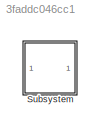
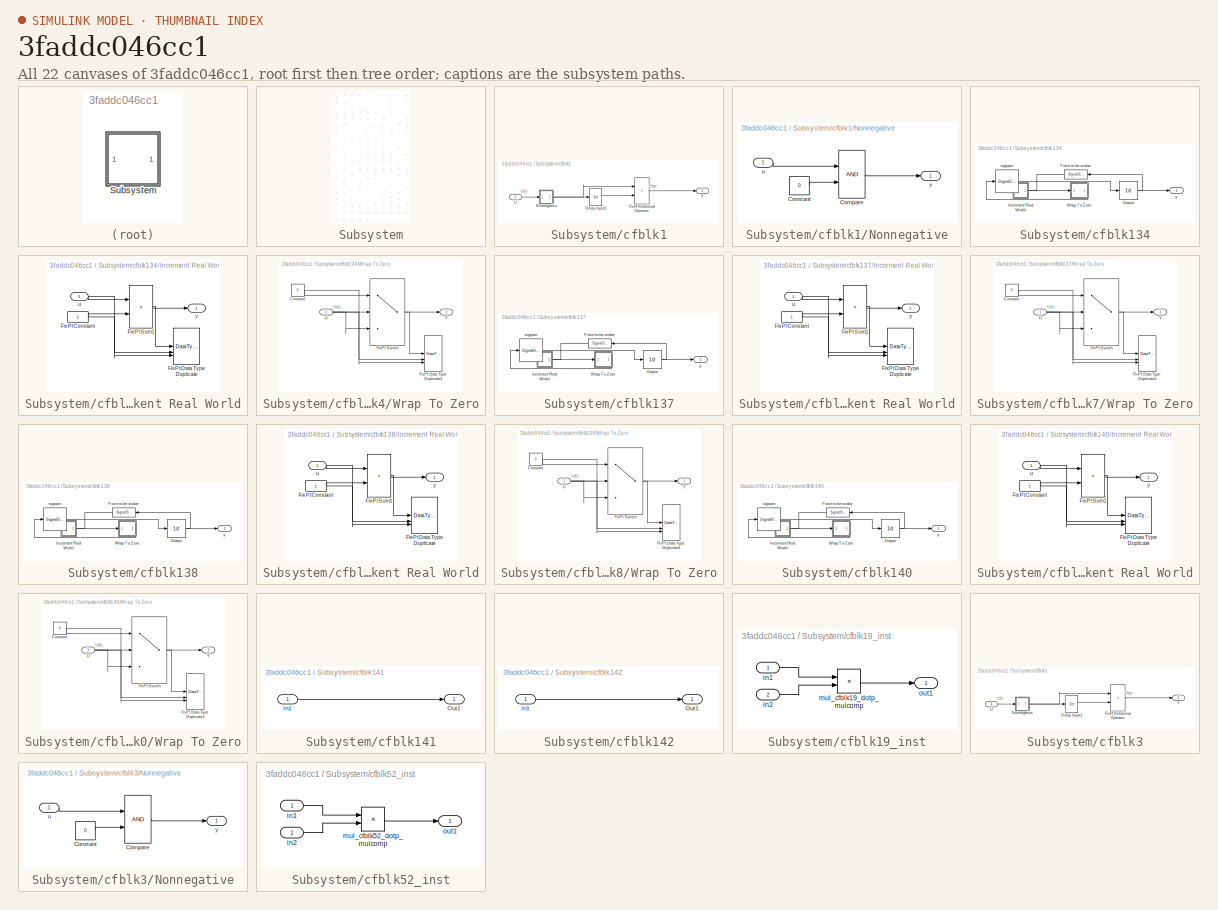
[diagram: thumbnail index - all 22 canvases of the model, root first then tree order]
MODEL slx_3faddc046cc1
KIND model
CONFIG AbsTol = auto
CONFIG EnableMultiTasking = off
CONFIG FixedStep = auto
CONFIG MaxStep = auto
CONFIG MinStep = auto
CONFIG RelTol = 1e-3
CONFIG SampleTimeConstraint = Unconstrained
CONFIG SolverName = VariableStepAuto
CONFIG StartTime = 0.0
CONFIG StopTime = 10.0
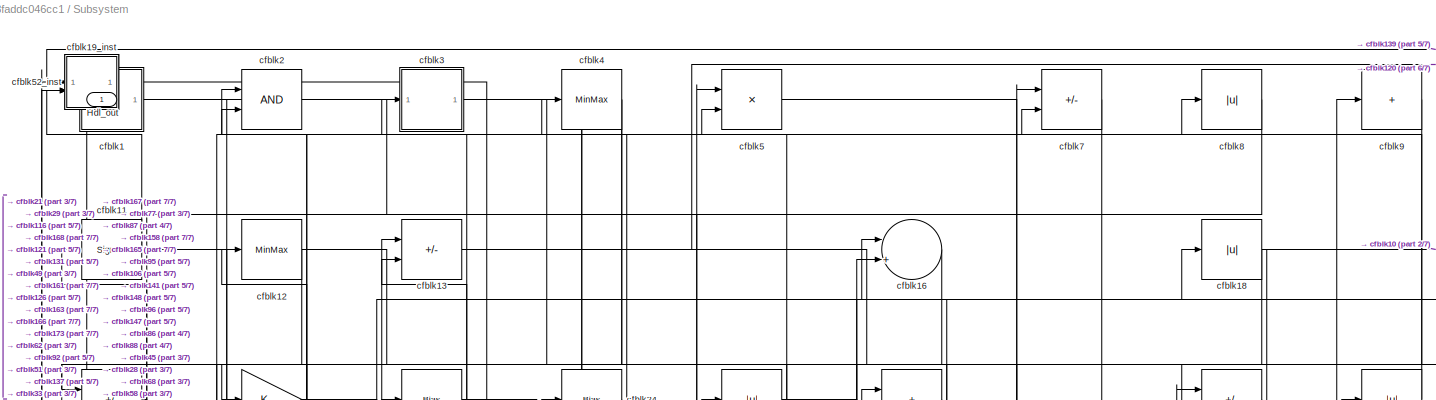
[diagram: Subsystem - part 1/7, full width, top band]
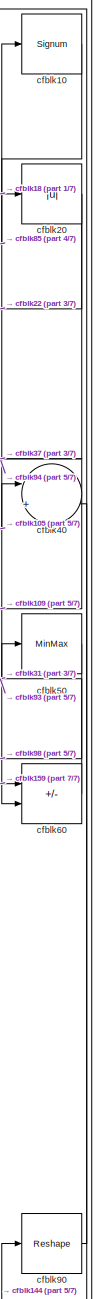
[diagram: Subsystem - part 2/7, top right region]
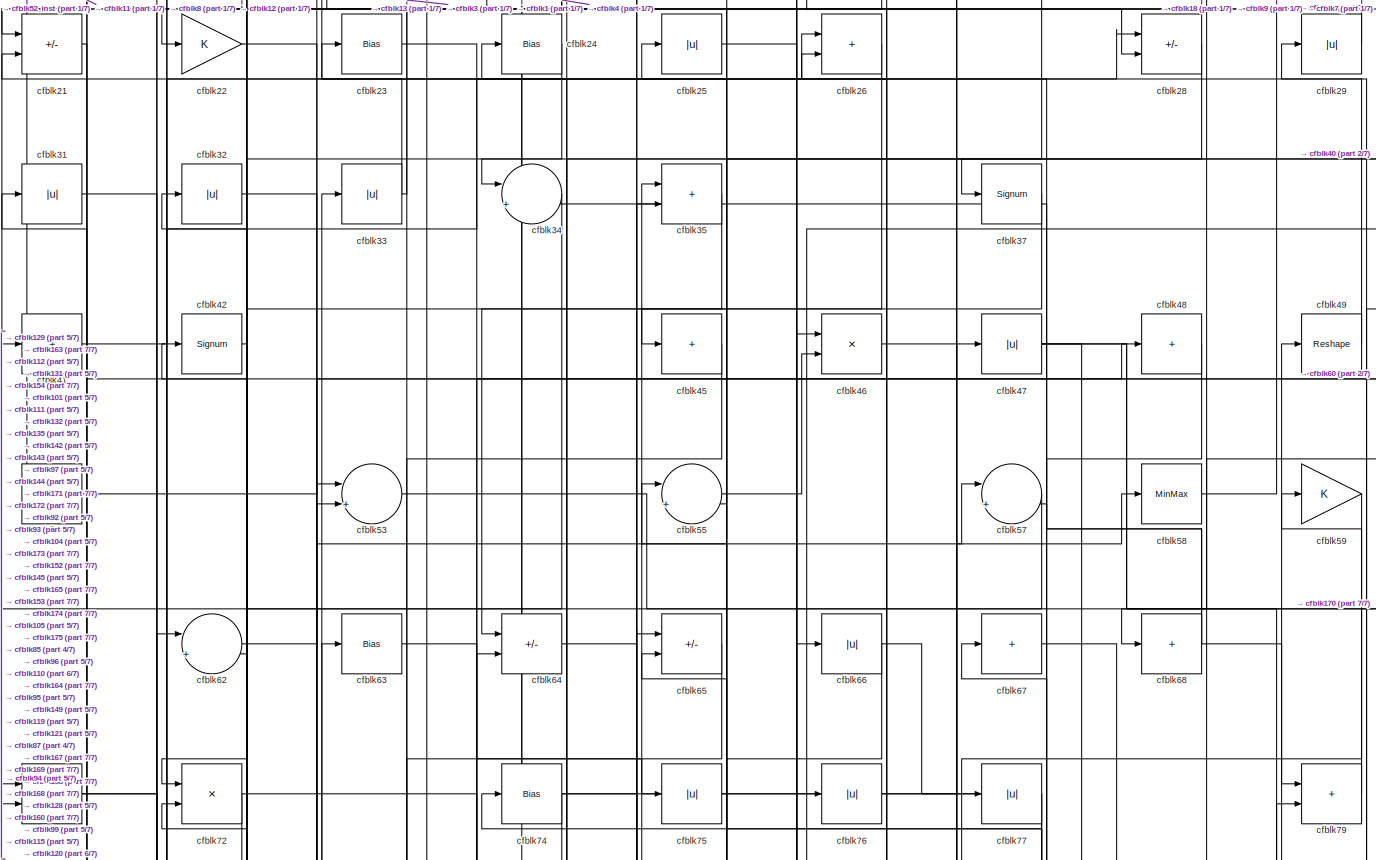
[diagram: Subsystem - part 3/7, full width, top band]
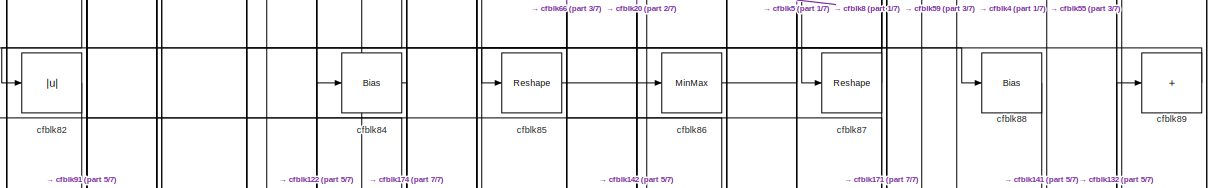
[diagram: Subsystem - part 4/7, full width, middle band]
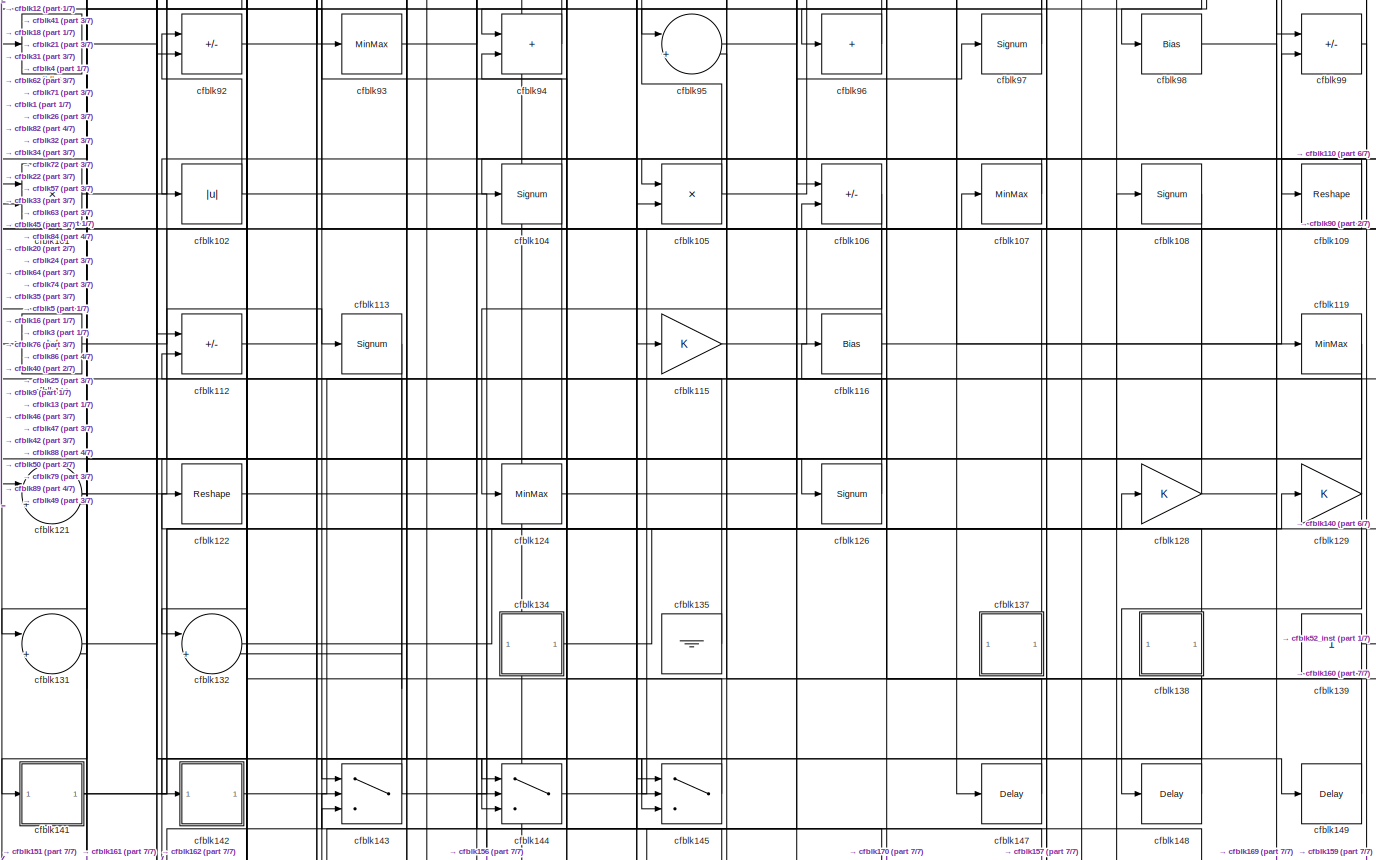
[diagram: Subsystem - part 5/7, full width, bottom band]
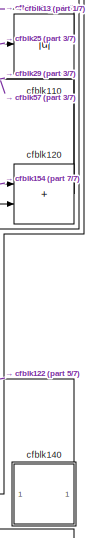
[diagram: Subsystem - part 6/7, bottom right region]
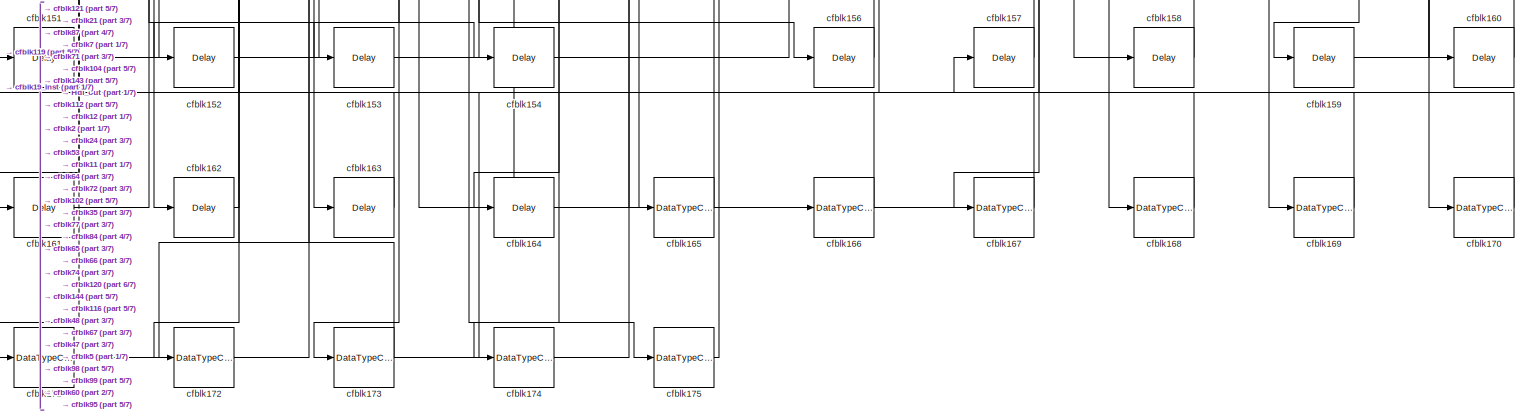
[diagram: Subsystem - part 7/7, full width, bottom band]
BLOCK [SubSystem] Subsystem
BLOCK [Outport] Subsystem/Hdl_out
  OutDataTypeStr = uint8
  SampleTime = 1
BLOCK [SubSystem] Subsystem/cfblk1
BLOCK [UnitDelay] Subsystem/cfblk1/Delay Input1
  Description = Store in Global RAM
  DisableCoverage = on
  HasFrameUpgradeWarning = on
  InitialCondition = vinit
  SampleTime = -1
BLOCK [RelationalOperator] Subsystem/cfblk1/FixPt Relational Operator
  InputSameDT = off
  Operator = >
  OutDataTypeStr = fixdt(0, 8)
  ZeroCross = off
BLOCK [SubSystem] Subsystem/cfblk1/Nonnegative
BLOCK [RelationalOperator] Subsystem/cfblk1/Nonnegative/Compare
  OutDataTypeStr = boolean
  ZeroCross = off
BLOCK [Constant] Subsystem/cfblk1/Nonnegative/Constant
  DisableCoverage = on
  OutDataTypeStr = Inherit: Inherit via back propagation
  PreserveConstantTs = on
  SampleTime = -1
  Value = 0
BLOCK [Inport] Subsystem/cfblk1/Nonnegative/u
  OutDataTypeStr = uint8
  SampleTime = 1
BLOCK [Outport] Subsystem/cfblk1/Nonnegative/y
  SampleTime = 1
BLOCK [Inport] Subsystem/cfblk1/U
  OutDataTypeStr = uint8
  SampleTime = 1
BLOCK [Outport] Subsystem/cfblk1/Y
  SampleTime = 1
BLOCK [Signum] Subsystem/cfblk10
BLOCK [Product] Subsystem/cfblk101
  Inputs = */
  OutDataTypeStr = uint8
  RndMeth = Zero
  SaturateOnIntegerOverflow = on
BLOCK [Abs] Subsystem/cfblk102
  OutDataTypeStr = uint8
  SaturateOnIntegerOverflow = off
BLOCK [Signum] Subsystem/cfblk104
BLOCK [Product] Subsystem/cfblk105
  Inputs = */
  OutDataTypeStr = uint8
  RndMeth = Zero
  SaturateOnIntegerOverflow = on
BLOCK [Sum] Subsystem/cfblk106
  IconShape = rectangular
  Inputs = +-
  OutDataTypeStr = uint8
BLOCK [MinMax] Subsystem/cfblk107
  OutDataTypeStr = uint8
BLOCK [Signum] Subsystem/cfblk108
BLOCK [Reshape] Subsystem/cfblk109
BLOCK [Signum] Subsystem/cfblk11
BLOCK [Abs] Subsystem/cfblk110
  OutDataTypeStr = uint8
  SaturateOnIntegerOverflow = off
BLOCK [Abs] Subsystem/cfblk111
  OutDataTypeStr = uint8
  SaturateOnIntegerOverflow = off
BLOCK [Sum] Subsystem/cfblk112
  IconShape = rectangular
  Inputs = +-
  OutDataTypeStr = uint8
BLOCK [Signum] Subsystem/cfblk113
BLOCK [Gain] Subsystem/cfblk115
  OutDataTypeStr = uint8
BLOCK [Bias] Subsystem/cfblk116
  Bias = 0.0
  SaturateOnIntegerOverflow = off
BLOCK [MinMax] Subsystem/cfblk119
  OutDataTypeStr = uint8
BLOCK [MinMax] Subsystem/cfblk12
  OutDataTypeStr = uint8
BLOCK [Sum] Subsystem/cfblk120
  IconShape = rectangular
  OutDataTypeStr = uint8
BLOCK [Sum] Subsystem/cfblk121
  Inputs = |++
  OutDataTypeStr = uint8
BLOCK [Reshape] Subsystem/cfblk122
BLOCK [MinMax] Subsystem/cfblk124
  OutDataTypeStr = uint8
BLOCK [Signum] Subsystem/cfblk126
BLOCK [Gain] Subsystem/cfblk128
  OutDataTypeStr = uint8
BLOCK [Gain] Subsystem/cfblk129
  OutDataTypeStr = uint8
BLOCK [Sum] Subsystem/cfblk13
  IconShape = rectangular
  Inputs = +-
  OutDataTypeStr = uint8
BLOCK [Sum] Subsystem/cfblk131
  Inputs = |++
  OutDataTypeStr = uint8
BLOCK [Sum] Subsystem/cfblk132
  Inputs = |++
  OutDataTypeStr = uint8
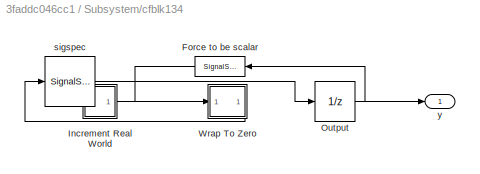
BLOCK [SubSystem] Subsystem/cfblk134
BLOCK [SignalSpecification] Subsystem/cfblk134/Force to be scalar
  Dimensions = 1
  DisableCoverage = on
BLOCK [SubSystem] Subsystem/cfblk134/Increment Real World
BLOCK [Constant] Subsystem/cfblk134/Increment Real World/FixPt Constant
  DisableCoverage = on
  OutDataTypeStr = Inherit: Inherit via back propagation
  SampleTime = -1
BLOCK [DataTypeDuplicate] Subsystem/cfblk134/Increment Real World/FixPt Data Type Duplicate
  DisableCoverage = on
  NumInputPorts = 3
BLOCK [Sum] Subsystem/cfblk134/Increment Real World/FixPt Sum1
  IconShape = rectangular
  InputSameDT = on
  LockScale = on
  OutDataTypeStr = Inherit: Inherit via back propagation
BLOCK [Inport] Subsystem/cfblk134/Increment Real World/u
  OutDataTypeStr = uint8
  SampleTime = 1
BLOCK [Outport] Subsystem/cfblk134/Increment Real World/y
  SampleTime = 1
BLOCK [UnitDelay] Subsystem/cfblk134/Output
  HasFrameUpgradeWarning = on
  InitialCondition = 0.0
  SampleTime = tsamp
BLOCK [SubSystem] Subsystem/cfblk134/Wrap To Zero
BLOCK [Constant] Subsystem/cfblk134/Wrap To Zero/Constant
  DisableCoverage = on
  OutDataTypeStr = Inherit: Inherit via back propagation
  SampleTime = -1
  Value = 0
BLOCK [DataTypeDuplicate] Subsystem/cfblk134/Wrap To Zero/FixPt Data Type Duplicate1
  DisableCoverage = on
  NumInputPorts = 3
BLOCK [Switch] Subsystem/cfblk134/Wrap To Zero/FixPt Switch
  Criteria = u2 > Threshold
  InputSameDT = off
  OutDataTypeStr = Inherit: Inherit via back propagation
  SaturateOnIntegerOverflow = off
  Threshold = Threshold
  ZeroCross = off
BLOCK [Inport] Subsystem/cfblk134/Wrap To Zero/U
  OutDataTypeStr = uint8
  SampleTime = 1
BLOCK [Outport] Subsystem/cfblk134/Wrap To Zero/Y
  SampleTime = 1
BLOCK [SignalSpecification] Subsystem/cfblk134/sigspec
  Dimensions = 1
  OutDataTypeStr = uint8
BLOCK [Outport] Subsystem/cfblk134/y
  SampleTime = 1
BLOCK [Ground] Subsystem/cfblk135
BLOCK [SubSystem] Subsystem/cfblk137
BLOCK [SignalSpecification] Subsystem/cfblk137/Force to be scalar
  Dimensions = 1
  DisableCoverage = on
BLOCK [SubSystem] Subsystem/cfblk137/Increment Real World
BLOCK [Constant] Subsystem/cfblk137/Increment Real World/FixPt Constant
  DisableCoverage = on
  OutDataTypeStr = Inherit: Inherit via back propagation
  SampleTime = -1
BLOCK [DataTypeDuplicate] Subsystem/cfblk137/Increment Real World/FixPt Data Type Duplicate
  DisableCoverage = on
  NumInputPorts = 3
BLOCK [Sum] Subsystem/cfblk137/Increment Real World/FixPt Sum1
  IconShape = rectangular
  InputSameDT = on
  LockScale = on
  OutDataTypeStr = Inherit: Inherit via back propagation
BLOCK [Inport] Subsystem/cfblk137/Increment Real World/u
  OutDataTypeStr = uint8
  SampleTime = 1
BLOCK [Outport] Subsystem/cfblk137/Increment Real World/y
  SampleTime = 1
BLOCK [UnitDelay] Subsystem/cfblk137/Output
  HasFrameUpgradeWarning = on
  InitialCondition = 0.0
  SampleTime = tsamp
BLOCK [SubSystem] Subsystem/cfblk137/Wrap To Zero
BLOCK [Constant] Subsystem/cfblk137/Wrap To Zero/Constant
  DisableCoverage = on
  OutDataTypeStr = Inherit: Inherit via back propagation
  SampleTime = -1
  Value = 0
BLOCK [DataTypeDuplicate] Subsystem/cfblk137/Wrap To Zero/FixPt Data Type Duplicate1
  DisableCoverage = on
  NumInputPorts = 3
BLOCK [Switch] Subsystem/cfblk137/Wrap To Zero/FixPt Switch
  Criteria = u2 > Threshold
  InputSameDT = off
  OutDataTypeStr = Inherit: Inherit via back propagation
  SaturateOnIntegerOverflow = off
  Threshold = Threshold
  ZeroCross = off
BLOCK [Inport] Subsystem/cfblk137/Wrap To Zero/U
  OutDataTypeStr = uint8
  SampleTime = 1
BLOCK [Outport] Subsystem/cfblk137/Wrap To Zero/Y
  SampleTime = 1
BLOCK [SignalSpecification] Subsystem/cfblk137/sigspec
  Dimensions = 1
  OutDataTypeStr = uint8
BLOCK [Outport] Subsystem/cfblk137/y
  SampleTime = 1
BLOCK [SubSystem] Subsystem/cfblk138
BLOCK [SignalSpecification] Subsystem/cfblk138/Force to be scalar
  Dimensions = 1
  DisableCoverage = on
BLOCK [SubSystem] Subsystem/cfblk138/Increment Real World
BLOCK [Constant] Subsystem/cfblk138/Increment Real World/FixPt Constant
  DisableCoverage = on
  OutDataTypeStr = Inherit: Inherit via back propagation
  SampleTime = -1
BLOCK [DataTypeDuplicate] Subsystem/cfblk138/Increment Real World/FixPt Data Type Duplicate
  DisableCoverage = on
  NumInputPorts = 3
BLOCK [Sum] Subsystem/cfblk138/Increment Real World/FixPt Sum1
  IconShape = rectangular
  InputSameDT = on
  LockScale = on
  OutDataTypeStr = Inherit: Inherit via back propagation
BLOCK [Inport] Subsystem/cfblk138/Increment Real World/u
  OutDataTypeStr = uint8
  SampleTime = 1
BLOCK [Outport] Subsystem/cfblk138/Increment Real World/y
  SampleTime = 1
BLOCK [UnitDelay] Subsystem/cfblk138/Output
  HasFrameUpgradeWarning = on
  InitialCondition = 0.0
  SampleTime = tsamp
BLOCK [SubSystem] Subsystem/cfblk138/Wrap To Zero
BLOCK [Constant] Subsystem/cfblk138/Wrap To Zero/Constant
  DisableCoverage = on
  OutDataTypeStr = Inherit: Inherit via back propagation
  SampleTime = -1
  Value = 0
BLOCK [DataTypeDuplicate] Subsystem/cfblk138/Wrap To Zero/FixPt Data Type Duplicate1
  DisableCoverage = on
  NumInputPorts = 3
BLOCK [Switch] Subsystem/cfblk138/Wrap To Zero/FixPt Switch
  Criteria = u2 > Threshold
  InputSameDT = off
  OutDataTypeStr = Inherit: Inherit via back propagation
  SaturateOnIntegerOverflow = off
  Threshold = Threshold
  ZeroCross = off
BLOCK [Inport] Subsystem/cfblk138/Wrap To Zero/U
  OutDataTypeStr = uint8
  SampleTime = 1
BLOCK [Outport] Subsystem/cfblk138/Wrap To Zero/Y
  SampleTime = 1
BLOCK [SignalSpecification] Subsystem/cfblk138/sigspec
  Dimensions = 1
  OutDataTypeStr = uint8
BLOCK [Outport] Subsystem/cfblk138/y
  SampleTime = 1
BLOCK [Constant] Subsystem/cfblk139
  OutDataTypeStr = uint8
  SampleTime = -1
BLOCK [SubSystem] Subsystem/cfblk140
BLOCK [SignalSpecification] Subsystem/cfblk140/Force to be scalar
  Dimensions = 1
  DisableCoverage = on
BLOCK [SubSystem] Subsystem/cfblk140/Increment Real World
BLOCK [Constant] Subsystem/cfblk140/Increment Real World/FixPt Constant
  DisableCoverage = on
  OutDataTypeStr = Inherit: Inherit via back propagation
  SampleTime = -1
BLOCK [DataTypeDuplicate] Subsystem/cfblk140/Increment Real World/FixPt Data Type Duplicate
  DisableCoverage = on
  NumInputPorts = 3
BLOCK [Sum] Subsystem/cfblk140/Increment Real World/FixPt Sum1
  IconShape = rectangular
  InputSameDT = on
  LockScale = on
  OutDataTypeStr = Inherit: Inherit via back propagation
BLOCK [Inport] Subsystem/cfblk140/Increment Real World/u
  OutDataTypeStr = uint8
  SampleTime = 1
BLOCK [Outport] Subsystem/cfblk140/Increment Real World/y
  SampleTime = 1
BLOCK [UnitDelay] Subsystem/cfblk140/Output
  HasFrameUpgradeWarning = on
  InitialCondition = 0.0
  SampleTime = tsamp
BLOCK [SubSystem] Subsystem/cfblk140/Wrap To Zero
BLOCK [Constant] Subsystem/cfblk140/Wrap To Zero/Constant
  DisableCoverage = on
  OutDataTypeStr = Inherit: Inherit via back propagation
  SampleTime = -1
  Value = 0
BLOCK [DataTypeDuplicate] Subsystem/cfblk140/Wrap To Zero/FixPt Data Type Duplicate1
  DisableCoverage = on
  NumInputPorts = 3
BLOCK [Switch] Subsystem/cfblk140/Wrap To Zero/FixPt Switch
  Criteria = u2 > Threshold
  InputSameDT = off
  OutDataTypeStr = Inherit: Inherit via back propagation
  SaturateOnIntegerOverflow = off
  Threshold = Threshold
  ZeroCross = off
BLOCK [Inport] Subsystem/cfblk140/Wrap To Zero/U
  OutDataTypeStr = uint8
  SampleTime = 1
BLOCK [Outport] Subsystem/cfblk140/Wrap To Zero/Y
  SampleTime = 1
BLOCK [SignalSpecification] Subsystem/cfblk140/sigspec
  Dimensions = 1
  OutDataTypeStr = uint8
BLOCK [Outport] Subsystem/cfblk140/y
  SampleTime = 1
BLOCK [SubSystem] Subsystem/cfblk141
BLOCK [Inport] Subsystem/cfblk141/In1
  OutDataTypeStr = uint8
  PortDimensions = 1
  SampleTime = 1
BLOCK [Outport] Subsystem/cfblk141/Out1
  SampleTime = 1
BLOCK [SubSystem] Subsystem/cfblk142
BLOCK [Inport] Subsystem/cfblk142/In1
  OutDataTypeStr = uint8
  PortDimensions = 1
  SampleTime = 1
BLOCK [Outport] Subsystem/cfblk142/Out1
  SampleTime = 1
BLOCK [Switch] Subsystem/cfblk143
  InputSameDT = off
  OutDataTypeStr = uint8
  SaturateOnIntegerOverflow = off
BLOCK [Switch] Subsystem/cfblk144
  InputSameDT = off
  OutDataTypeStr = uint8
  SaturateOnIntegerOverflow = off
BLOCK [Switch] Subsystem/cfblk145
  InputSameDT = off
  OutDataTypeStr = uint8
  SaturateOnIntegerOverflow = off
BLOCK [Delay] Subsystem/cfblk147
  InputPortMap = u0
  SampleTime = 1
BLOCK [Delay] Subsystem/cfblk148
  InputPortMap = u0
  SampleTime = 1
BLOCK [Delay] Subsystem/cfblk149
  InputPortMap = u0
  SampleTime = 1
BLOCK [Delay] Subsystem/cfblk151
  InputPortMap = u0
  SampleTime = 1
BLOCK [Delay] Subsystem/cfblk152
  InputPortMap = u0
  SampleTime = 1
BLOCK [Delay] Subsystem/cfblk153
  InputPortMap = u0
  SampleTime = 1
BLOCK [Delay] Subsystem/cfblk154
  InputPortMap = u0
  SampleTime = 1
BLOCK [Delay] Subsystem/cfblk156
  InputPortMap = u0
  SampleTime = 1
BLOCK [Delay] Subsystem/cfblk157
  InputPortMap = u0
  SampleTime = 1
BLOCK [Delay] Subsystem/cfblk158
  InputPortMap = u0
  SampleTime = 1
BLOCK [Delay] Subsystem/cfblk159
  InputPortMap = u0
  SampleTime = 1
BLOCK [Sum] Subsystem/cfblk16
  Inputs = |++
  OutDataTypeStr = uint8
BLOCK [Delay] Subsystem/cfblk160
  InputPortMap = u0
  SampleTime = 1
BLOCK [Delay] Subsystem/cfblk161
  InputPortMap = u0
  SampleTime = 1
BLOCK [Delay] Subsystem/cfblk162
  InputPortMap = u0
  SampleTime = 1
BLOCK [Delay] Subsystem/cfblk163
  InputPortMap = u0
  SampleTime = 1
BLOCK [Delay] Subsystem/cfblk164
  InputPortMap = u0
  SampleTime = 1
BLOCK [DataTypeConversion] Subsystem/cfblk165
  OutDataTypeStr = uint8
  RndMeth = Floor
  SaturateOnIntegerOverflow = off
BLOCK [DataTypeConversion] Subsystem/cfblk166
  OutDataTypeStr = uint8
  RndMeth = Floor
  SaturateOnIntegerOverflow = off
BLOCK [DataTypeConversion] Subsystem/cfblk167
  OutDataTypeStr = uint8
  RndMeth = Floor
  SaturateOnIntegerOverflow = off
BLOCK [DataTypeConversion] Subsystem/cfblk168
  OutDataTypeStr = uint8
  RndMeth = Floor
  SaturateOnIntegerOverflow = off
BLOCK [DataTypeConversion] Subsystem/cfblk169
  OutDataTypeStr = uint8
  RndMeth = Floor
  SaturateOnIntegerOverflow = off
BLOCK [DataTypeConversion] Subsystem/cfblk170
  OutDataTypeStr = uint8
  RndMeth = Floor
  SaturateOnIntegerOverflow = off
BLOCK [DataTypeConversion] Subsystem/cfblk171
  OutDataTypeStr = uint8
  RndMeth = Floor
  SaturateOnIntegerOverflow = off
BLOCK [DataTypeConversion] Subsystem/cfblk172
  OutDataTypeStr = uint8
  RndMeth = Floor
  SaturateOnIntegerOverflow = off
BLOCK [DataTypeConversion] Subsystem/cfblk173
  OutDataTypeStr = uint8
  RndMeth = Floor
  SaturateOnIntegerOverflow = off
BLOCK [DataTypeConversion] Subsystem/cfblk174
  OutDataTypeStr = uint8
  RndMeth = Floor
  SaturateOnIntegerOverflow = off
BLOCK [DataTypeConversion] Subsystem/cfblk175
  OutDataTypeStr = uint8
  RndMeth = Floor
  SaturateOnIntegerOverflow = off
BLOCK [Abs] Subsystem/cfblk18
  OutDataTypeStr = uint8
  SaturateOnIntegerOverflow = off
BLOCK [SubSystem] Subsystem/cfblk19_inst
BLOCK [Inport] Subsystem/cfblk19_inst/in1
  OutDataTypeStr = uint8
  SampleTime = 1
BLOCK [Inport] Subsystem/cfblk19_inst/in2
  OutDataTypeStr = uint8
  Port = 2
  SampleTime = 1
BLOCK [Product] Subsystem/cfblk19_inst/mul_cfblk19_dotp_mulcomp
  Inputs = **
  OutDataTypeStr = uint8
  SampleTime = 1
BLOCK [Outport] Subsystem/cfblk19_inst/out1
  OutDataTypeStr = uint8
  SampleTime = 1
BLOCK [Logic] Subsystem/cfblk2
  AllPortsSameDT = off
  OutDataTypeStr = boolean
BLOCK [Abs] Subsystem/cfblk20
  OutDataTypeStr = uint8
  SaturateOnIntegerOverflow = off
BLOCK [Sum] Subsystem/cfblk21
  IconShape = rectangular
  Inputs = +-
  OutDataTypeStr = uint8
BLOCK [Gain] Subsystem/cfblk22
  OutDataTypeStr = uint8
BLOCK [Bias] Subsystem/cfblk23
  Bias = 0.0
  SaturateOnIntegerOverflow = off
BLOCK [Bias] Subsystem/cfblk24
  Bias = 0.0
  SaturateOnIntegerOverflow = off
BLOCK [Abs] Subsystem/cfblk25
  OutDataTypeStr = uint8
  SaturateOnIntegerOverflow = off
BLOCK [Sum] Subsystem/cfblk26
  IconShape = rectangular
  OutDataTypeStr = uint8
BLOCK [Sum] Subsystem/cfblk28
  IconShape = rectangular
  Inputs = +-
  OutDataTypeStr = uint8
BLOCK [Abs] Subsystem/cfblk29
  OutDataTypeStr = uint8
  SaturateOnIntegerOverflow = off
BLOCK [SubSystem] Subsystem/cfblk3
BLOCK [UnitDelay] Subsystem/cfblk3/Delay Input1
  Description = Store in Global RAM
  DisableCoverage = on
  HasFrameUpgradeWarning = on
  InitialCondition = vinit
  SampleTime = -1
BLOCK [RelationalOperator] Subsystem/cfblk3/FixPt Relational Operator
  InputSameDT = off
  Operator = >
  OutDataTypeStr = fixdt(0, 8)
  ZeroCross = off
BLOCK [SubSystem] Subsystem/cfblk3/Nonnegative
BLOCK [RelationalOperator] Subsystem/cfblk3/Nonnegative/Compare
  OutDataTypeStr = boolean
  ZeroCross = off
BLOCK [Constant] Subsystem/cfblk3/Nonnegative/Constant
  DisableCoverage = on
  OutDataTypeStr = Inherit: Inherit via back propagation
  PreserveConstantTs = on
  SampleTime = -1
  Value = 0
BLOCK [Inport] Subsystem/cfblk3/Nonnegative/u
  OutDataTypeStr = uint8
  SampleTime = 1
BLOCK [Outport] Subsystem/cfblk3/Nonnegative/y
  SampleTime = 1
BLOCK [Inport] Subsystem/cfblk3/U
  OutDataTypeStr = uint8
  SampleTime = 1
BLOCK [Outport] Subsystem/cfblk3/Y
  SampleTime = 1
BLOCK [Abs] Subsystem/cfblk31
  OutDataTypeStr = uint8
  SaturateOnIntegerOverflow = off
BLOCK [Abs] Subsystem/cfblk32
  OutDataTypeStr = uint8
  SaturateOnIntegerOverflow = off
BLOCK [Abs] Subsystem/cfblk33
  OutDataTypeStr = uint8
  SaturateOnIntegerOverflow = off
BLOCK [Sum] Subsystem/cfblk34
  Inputs = |++
  OutDataTypeStr = uint8
BLOCK [Sum] Subsystem/cfblk35
  IconShape = rectangular
  OutDataTypeStr = uint8
BLOCK [Signum] Subsystem/cfblk37
BLOCK [MinMax] Subsystem/cfblk4
  OutDataTypeStr = uint8
BLOCK [Sum] Subsystem/cfblk40
  Inputs = |++
  OutDataTypeStr = uint8
BLOCK [Sum] Subsystem/cfblk41
  IconShape = rectangular
  Inputs = +
  OutDataTypeStr = uint8
BLOCK [Signum] Subsystem/cfblk42
BLOCK [Sum] Subsystem/cfblk45
  IconShape = rectangular
  Inputs = +
  OutDataTypeStr = uint8
BLOCK [Product] Subsystem/cfblk46
  Inputs = */
  OutDataTypeStr = uint8
  RndMeth = Zero
  SaturateOnIntegerOverflow = on
BLOCK [Abs] Subsystem/cfblk47
  OutDataTypeStr = uint8
  SaturateOnIntegerOverflow = off
BLOCK [Sum] Subsystem/cfblk48
  IconShape = rectangular
  Inputs = +
  OutDataTypeStr = uint8
BLOCK [Reshape] Subsystem/cfblk49
BLOCK [Product] Subsystem/cfblk5
  Inputs = */
  OutDataTypeStr = uint8
  RndMeth = Zero
  SaturateOnIntegerOverflow = on
BLOCK [MinMax] Subsystem/cfblk50
  OutDataTypeStr = uint8
BLOCK [Bias] Subsystem/cfblk51
  Bias = 0.0
  SaturateOnIntegerOverflow = off
BLOCK [SubSystem] Subsystem/cfblk52_inst
BLOCK [Inport] Subsystem/cfblk52_inst/in1
  OutDataTypeStr = uint8
  SampleTime = 1
BLOCK [Inport] Subsystem/cfblk52_inst/in2
  OutDataTypeStr = uint8
  Port = 2
  SampleTime = 1
BLOCK [Product] Subsystem/cfblk52_inst/mul_cfblk52_dotp_mulcomp
  Inputs = **
  OutDataTypeStr = uint8
  SampleTime = 1
BLOCK [Outport] Subsystem/cfblk52_inst/out1
  OutDataTypeStr = uint8
  SampleTime = 1
BLOCK [Sum] Subsystem/cfblk53
  Inputs = |++
  OutDataTypeStr = uint8
BLOCK [Sum] Subsystem/cfblk55
  Inputs = |++
  OutDataTypeStr = uint8
BLOCK [Sum] Subsystem/cfblk57
  Inputs = |++
  OutDataTypeStr = uint8
BLOCK [MinMax] Subsystem/cfblk58
  OutDataTypeStr = uint8
BLOCK [Gain] Subsystem/cfblk59
  OutDataTypeStr = uint8
BLOCK [Sum] Subsystem/cfblk60
  IconShape = rectangular
  Inputs = +-
  OutDataTypeStr = uint8
BLOCK [Sum] Subsystem/cfblk62
  Inputs = |++
  OutDataTypeStr = uint8
BLOCK [Bias] Subsystem/cfblk63
  Bias = 0.0
  SaturateOnIntegerOverflow = off
BLOCK [Sum] Subsystem/cfblk64
  IconShape = rectangular
  Inputs = +-
  OutDataTypeStr = uint8
BLOCK [Sum] Subsystem/cfblk65
  IconShape = rectangular
  Inputs = +-
  OutDataTypeStr = uint8
BLOCK [Abs] Subsystem/cfblk66
  OutDataTypeStr = uint8
  SaturateOnIntegerOverflow = off
BLOCK [Sum] Subsystem/cfblk67
  IconShape = rectangular
  Inputs = +
  OutDataTypeStr = uint8
BLOCK [Sum] Subsystem/cfblk68
  IconShape = rectangular
  Inputs = +
  OutDataTypeStr = uint8
BLOCK [Sum] Subsystem/cfblk7
  IconShape = rectangular
  Inputs = +-
  OutDataTypeStr = uint8
BLOCK [Product] Subsystem/cfblk71
  Inputs = */
  OutDataTypeStr = uint8
  RndMeth = Zero
  SaturateOnIntegerOverflow = on
BLOCK [Product] Subsystem/cfblk72
  Inputs = */
  OutDataTypeStr = uint8
  RndMeth = Zero
  SaturateOnIntegerOverflow = on
BLOCK [Bias] Subsystem/cfblk74
  Bias = 0.0
  SaturateOnIntegerOverflow = off
BLOCK [Abs] Subsystem/cfblk75
  OutDataTypeStr = uint8
  SaturateOnIntegerOverflow = off
BLOCK [Abs] Subsystem/cfblk76
  OutDataTypeStr = uint8
  SaturateOnIntegerOverflow = off
BLOCK [Abs] Subsystem/cfblk77
  OutDataTypeStr = uint8
  SaturateOnIntegerOverflow = off
BLOCK [Sum] Subsystem/cfblk79
  IconShape = rectangular
  OutDataTypeStr = uint8
BLOCK [Abs] Subsystem/cfblk8
  OutDataTypeStr = uint8
  SaturateOnIntegerOverflow = off
BLOCK [Abs] Subsystem/cfblk82
  OutDataTypeStr = uint8
  SaturateOnIntegerOverflow = off
BLOCK [Bias] Subsystem/cfblk84
  Bias = 0.0
  SaturateOnIntegerOverflow = off
BLOCK [Reshape] Subsystem/cfblk85
BLOCK [MinMax] Subsystem/cfblk86
  OutDataTypeStr = uint8
BLOCK [Reshape] Subsystem/cfblk87
BLOCK [Bias] Subsystem/cfblk88
  Bias = 0.0
  SaturateOnIntegerOverflow = off
BLOCK [Sum] Subsystem/cfblk89
  IconShape = rectangular
  Inputs = +
  OutDataTypeStr = uint8
BLOCK [Sum] Subsystem/cfblk9
  IconShape = rectangular
  Inputs = +
  OutDataTypeStr = uint8
BLOCK [Reshape] Subsystem/cfblk90
BLOCK [Sum] Subsystem/cfblk91
  IconShape = rectangular
  Inputs = +
  OutDataTypeStr = uint8
BLOCK [Sum] Subsystem/cfblk92
  IconShape = rectangular
  Inputs = +-
  OutDataTypeStr = uint8
BLOCK [MinMax] Subsystem/cfblk93
  OutDataTypeStr = uint8
BLOCK [Sum] Subsystem/cfblk94
  IconShape = rectangular
  OutDataTypeStr = uint8
BLOCK [Sum] Subsystem/cfblk95
  Inputs = |++
  OutDataTypeStr = uint8
BLOCK [Sum] Subsystem/cfblk96
  IconShape = rectangular
  Inputs = +
  OutDataTypeStr = uint8
BLOCK [Signum] Subsystem/cfblk97
BLOCK [Bias] Subsystem/cfblk98
  Bias = 0.0
  SaturateOnIntegerOverflow = off
BLOCK [Sum] Subsystem/cfblk99
  IconShape = rectangular
  Inputs = +-
  OutDataTypeStr = uint8
ANNOTATION Subsystem/cfblk1: Edge
ANNOTATION Subsystem/cfblk1: U(k)
ANNOTATION Subsystem/cfblk134/Wrap To Zero: U(k)
ANNOTATION Subsystem/cfblk137/Wrap To Zero: U(k)
ANNOTATION Subsystem/cfblk138/Wrap To Zero: U(k)
ANNOTATION Subsystem/cfblk140/Wrap To Zero: U(k)
ANNOTATION Subsystem/cfblk3: Edge
ANNOTATION Subsystem/cfblk3: U(k)
LINE Subsystem/cfblk101:1 -> Subsystem/cfblk26:1
NET Subsystem/cfblk102:1 -> Subsystem/cfblk156:1, Subsystem/cfblk92:1
NET Subsystem/cfblk104:1 -> Subsystem/cfblk162:1, Subsystem/cfblk33:1
NET Subsystem/cfblk105:1 -> Subsystem/cfblk35:1, Subsystem/cfblk40:1
LINE Subsystem/cfblk106:1 -> Subsystem/cfblk124:1
LINE Subsystem/cfblk107:1 -> Subsystem/cfblk104:1
LINE Subsystem/cfblk108:1 -> Subsystem/cfblk121:2
NET Subsystem/cfblk109:1 -> Subsystem/cfblk102:1, Subsystem/cfblk106:2
LINE Subsystem/cfblk10:1 -> Subsystem/cfblk60:2
LINE Subsystem/cfblk110:1 -> Subsystem/cfblk105:1
LINE Subsystem/cfblk111:1 -> Subsystem/cfblk113:1
LINE Subsystem/cfblk112:1 -> Subsystem/cfblk107:1
LINE Subsystem/cfblk113:1 -> Subsystem/cfblk132:2
LINE Subsystem/cfblk115:1 -> Subsystem/cfblk49:1
NET Subsystem/cfblk116:1 -> Subsystem/cfblk144:3, Subsystem/cfblk19_inst:2, Subsystem/cfblk99:2
NET Subsystem/cfblk119:1 -> Subsystem/cfblk131:2, Subsystem/cfblk151:1
NET Subsystem/cfblk11:1 -> Subsystem/cfblk163:1, Subsystem/cfblk52_inst:2
NET Subsystem/cfblk120:1 -> Subsystem/cfblk29:1, Subsystem/cfblk57:2
NET Subsystem/cfblk121:1 -> Subsystem/cfblk161:1, Subsystem/cfblk47:1
LINE Subsystem/cfblk122:1 -> Subsystem/cfblk84:1
LINE Subsystem/cfblk124:1 -> Subsystem/cfblk97:1
LINE Subsystem/cfblk126:1 -> Subsystem/cfblk5:2
NET Subsystem/cfblk128:1 -> Subsystem/cfblk63:1, Subsystem/cfblk79:2
NET Subsystem/cfblk129:1 -> Subsystem/cfblk148:1, Subsystem/cfblk41:1
NET Subsystem/cfblk12:1 -> Subsystem/cfblk121:1, Subsystem/cfblk28:2
LINE Subsystem/cfblk131:1 -> Subsystem/cfblk62:1
LINE Subsystem/cfblk132:1 -> Subsystem/cfblk89:1
LINE Subsystem/cfblk134:1 -> Subsystem/cfblk128:1
LINE Subsystem/cfblk135:1 -> Subsystem/cfblk72:2
LINE Subsystem/cfblk137:1 -> Subsystem/cfblk13:1
NET Subsystem/cfblk138:1 -> Subsystem/cfblk145:3, Subsystem/cfblk94:2
LINE Subsystem/cfblk139:1 -> Subsystem/cfblk52_inst:1
NET Subsystem/cfblk13:1 -> Subsystem/cfblk120:2, Subsystem/cfblk147:1
LINE Subsystem/cfblk140:1 -> Subsystem/cfblk122:1
LINE Subsystem/cfblk141/In1:1 -> Subsystem/cfblk141/Out1:1
NET Subsystem/cfblk141:1 -> Subsystem/cfblk108:1, Subsystem/cfblk16:2
LINE Subsystem/cfblk142/In1:1 -> Subsystem/cfblk142/Out1:1
LINE Subsystem/cfblk142:1 -> Subsystem/cfblk86:1
NET Subsystem/cfblk143:1 -> Subsystem/cfblk129:1, Subsystem/cfblk32:1
LINE Subsystem/cfblk144:1 -> Subsystem/cfblk90:1
LINE Subsystem/cfblk145:1 -> Subsystem/cfblk24:1
LINE Subsystem/cfblk147:1 -> Subsystem/cfblk101:2
LINE Subsystem/cfblk148:1 -> Subsystem/cfblk16:1
LINE Subsystem/cfblk149:1 -> Subsystem/cfblk26:2
LINE Subsystem/cfblk151:1 -> Subsystem/cfblk143:2
LINE Subsystem/cfblk152:1 -> Subsystem/cfblk64:2
LINE Subsystem/cfblk153:1 -> Subsystem/cfblk35:2
LINE Subsystem/cfblk154:1 -> Subsystem/cfblk120:1
LINE Subsystem/cfblk156:1 -> Subsystem/cfblk144:2
LINE Subsystem/cfblk157:1 -> Subsystem/cfblk143:3
LINE Subsystem/cfblk158:1 -> Subsystem/cfblk5:1
LINE Subsystem/cfblk159:1 -> Subsystem/cfblk60:1
LINE Subsystem/cfblk160:1 -> Subsystem/cfblk95:2
LINE Subsystem/cfblk161:1 -> Subsystem/cfblk7:2
LINE Subsystem/cfblk162:1 -> Subsystem/cfblk112:2
LINE Subsystem/cfblk163:1 -> Subsystem/cfblk21:2
LINE Subsystem/cfblk164:1 -> Subsystem/cfblk66:1
LINE Subsystem/cfblk165:1 -> Subsystem/cfblk74:1
LINE Subsystem/cfblk166:1 -> Subsystem/cfblk2:1
NET Subsystem/cfblk167:1 -> Subsystem/Hdl_out:1, Subsystem/cfblk2:2
LINE Subsystem/cfblk168:1 -> Subsystem/cfblk19_inst:1
LINE Subsystem/cfblk169:1 -> Subsystem/cfblk67:1
LINE Subsystem/cfblk16:1 -> Subsystem/cfblk95:1
LINE Subsystem/cfblk170:1 -> Subsystem/cfblk116:1
LINE Subsystem/cfblk171:1 -> Subsystem/cfblk53:1
LINE Subsystem/cfblk172:1 -> Subsystem/cfblk53:2
NET Subsystem/cfblk173:1 -> Subsystem/cfblk12:1, Subsystem/cfblk157:1
LINE Subsystem/cfblk174:1 -> Subsystem/cfblk65:1
LINE Subsystem/cfblk175:1 -> Subsystem/cfblk65:2
NET Subsystem/cfblk18:1 -> Subsystem/cfblk10:1, Subsystem/cfblk131:1, Subsystem/cfblk68:1
LINE Subsystem/cfblk19_inst/in1:1 -> Subsystem/cfblk19_inst/mul_cfblk19_dotp_mulcomp:1
LINE Subsystem/cfblk19_inst/in2:1 -> Subsystem/cfblk19_inst/mul_cfblk19_dotp_mulcomp:2
LINE Subsystem/cfblk19_inst/mul_cfblk19_dotp_mulcomp:1 -> Subsystem/cfblk19_inst/out1:1
LINE Subsystem/cfblk19_inst:1 -> Subsystem/cfblk166:1
LINE Subsystem/cfblk1:1 -> Subsystem/cfblk126:1
NET Subsystem/cfblk20:1 -> Subsystem/cfblk22:1, Subsystem/cfblk94:1
LINE Subsystem/cfblk21:1 -> Subsystem/cfblk101:1
LINE Subsystem/cfblk22:1 -> Subsystem/cfblk93:1
LINE Subsystem/cfblk23:1 -> Subsystem/cfblk75:1
LINE Subsystem/cfblk24:1 -> Subsystem/cfblk152:1
LINE Subsystem/cfblk25:1 -> Subsystem/cfblk110:1
LINE Subsystem/cfblk26:1 -> Subsystem/cfblk64:1
LINE Subsystem/cfblk28:1 -> Subsystem/cfblk34:1
LINE Subsystem/cfblk29:1 -> Subsystem/cfblk7:1
LINE Subsystem/cfblk2:1 -> Subsystem/cfblk165:1
LINE Subsystem/cfblk31:1 -> Subsystem/cfblk112:1
LINE Subsystem/cfblk32:1 -> Subsystem/cfblk144:1
NET Subsystem/cfblk33:1 -> Subsystem/cfblk13:2, Subsystem/cfblk3:1
LINE Subsystem/cfblk34:1 -> Subsystem/cfblk132:1
LINE Subsystem/cfblk35:1 -> Subsystem/cfblk142:1
LINE Subsystem/cfblk37:1 -> Subsystem/cfblk55:2
LINE Subsystem/cfblk3:1 -> Subsystem/cfblk106:1
NET Subsystem/cfblk40:1 -> Subsystem/cfblk109:1, Subsystem/cfblk37:1
LINE Subsystem/cfblk41:1 -> Subsystem/cfblk28:1
LINE Subsystem/cfblk42:1 -> Subsystem/cfblk72:1
LINE Subsystem/cfblk45:1 -> Subsystem/cfblk143:1
LINE Subsystem/cfblk46:1 -> Subsystem/cfblk119:1
NET Subsystem/cfblk47:1 -> Subsystem/cfblk158:1, Subsystem/cfblk160:1, Subsystem/cfblk99:1
LINE Subsystem/cfblk48:1 -> Subsystem/cfblk167:1
LINE Subsystem/cfblk49:1 -> Subsystem/cfblk11:1
NET Subsystem/cfblk4:1 -> Subsystem/cfblk62:2, Subsystem/cfblk92:2
LINE Subsystem/cfblk50:1 -> Subsystem/cfblk98:1
LINE Subsystem/cfblk51:1 -> Subsystem/cfblk18:1
LINE Subsystem/cfblk52_inst/in1:1 -> Subsystem/cfblk52_inst/mul_cfblk52_dotp_mulcomp:1
LINE Subsystem/cfblk52_inst/in2:1 -> Subsystem/cfblk52_inst/mul_cfblk52_dotp_mulcomp:2
LINE Subsystem/cfblk52_inst/mul_cfblk52_dotp_mulcomp:1 -> Subsystem/cfblk52_inst/out1:1
LINE Subsystem/cfblk52_inst:1 -> Subsystem/cfblk51:1
LINE Subsystem/cfblk53:1 -> Subsystem/cfblk170:1
LINE Subsystem/cfblk55:1 -> Subsystem/cfblk46:2
LINE Subsystem/cfblk57:1 -> Subsystem/cfblk71:2
LINE Subsystem/cfblk58:1 -> Subsystem/cfblk9:1
LINE Subsystem/cfblk59:1 -> Subsystem/cfblk87:1
LINE Subsystem/cfblk5:1 -> Subsystem/cfblk88:1
LINE Subsystem/cfblk60:1 -> Subsystem/cfblk31:1
LINE Subsystem/cfblk62:1 -> Subsystem/cfblk48:1
LINE Subsystem/cfblk63:1 -> Subsystem/cfblk105:2
LINE Subsystem/cfblk64:1 -> Subsystem/cfblk115:1
LINE Subsystem/cfblk65:1 -> Subsystem/cfblk173:1
NET Subsystem/cfblk66:1 -> Subsystem/cfblk77:1, Subsystem/cfblk85:1
LINE Subsystem/cfblk67:1 -> Subsystem/cfblk168:1
NET Subsystem/cfblk68:1 -> Subsystem/cfblk23:1, Subsystem/cfblk34:2, Subsystem/cfblk79:1
NET Subsystem/cfblk71:1 -> Subsystem/cfblk145:2, Subsystem/cfblk154:1
NET Subsystem/cfblk72:1 -> Subsystem/cfblk111:1, Subsystem/cfblk175:1
NET Subsystem/cfblk74:1 -> Subsystem/cfblk145:1, Subsystem/cfblk153:1
LINE Subsystem/cfblk75:1 -> Subsystem/cfblk46:1
LINE Subsystem/cfblk76:1 -> Subsystem/cfblk58:1
NET Subsystem/cfblk77:1 -> Subsystem/cfblk164:1, Subsystem/cfblk172:1, Subsystem/cfblk1:1
LINE Subsystem/cfblk79:1 -> Subsystem/cfblk59:1
LINE Subsystem/cfblk7:1 -> Subsystem/cfblk45:1
LINE Subsystem/cfblk82:1 -> Subsystem/cfblk91:1
LINE Subsystem/cfblk84:1 -> Subsystem/cfblk174:1
LINE Subsystem/cfblk85:1 -> Subsystem/cfblk20:1
LINE Subsystem/cfblk86:1 -> Subsystem/cfblk8:1
NET Subsystem/cfblk87:1 -> Subsystem/cfblk171:1, Subsystem/cfblk4:1, Subsystem/cfblk55:1
LINE Subsystem/cfblk88:1 -> Subsystem/cfblk141:1
LINE Subsystem/cfblk89:1 -> Subsystem/cfblk82:1
LINE Subsystem/cfblk8:1 -> Subsystem/cfblk21:1
LINE Subsystem/cfblk90:1 -> Subsystem/cfblk40:2
LINE Subsystem/cfblk91:1 -> Subsystem/cfblk149:1
LINE Subsystem/cfblk92:1 -> Subsystem/cfblk57:1
LINE Subsystem/cfblk93:1 -> Subsystem/cfblk50:1
LINE Subsystem/cfblk94:1 -> Subsystem/cfblk71:1
LINE Subsystem/cfblk95:1 -> Subsystem/cfblk76:1
LINE Subsystem/cfblk96:1 -> Subsystem/cfblk25:1
LINE Subsystem/cfblk97:1 -> Subsystem/cfblk42:1
LINE Subsystem/cfblk98:1 -> Subsystem/cfblk169:1
LINE Subsystem/cfblk99:1 -> Subsystem/cfblk159:1
LINE Subsystem/cfblk9:1 -> Subsystem/cfblk96:1
note: NET lines group one-source signal fan-out (src -> all destinations, sorted); 1:1 wires keep LINE
